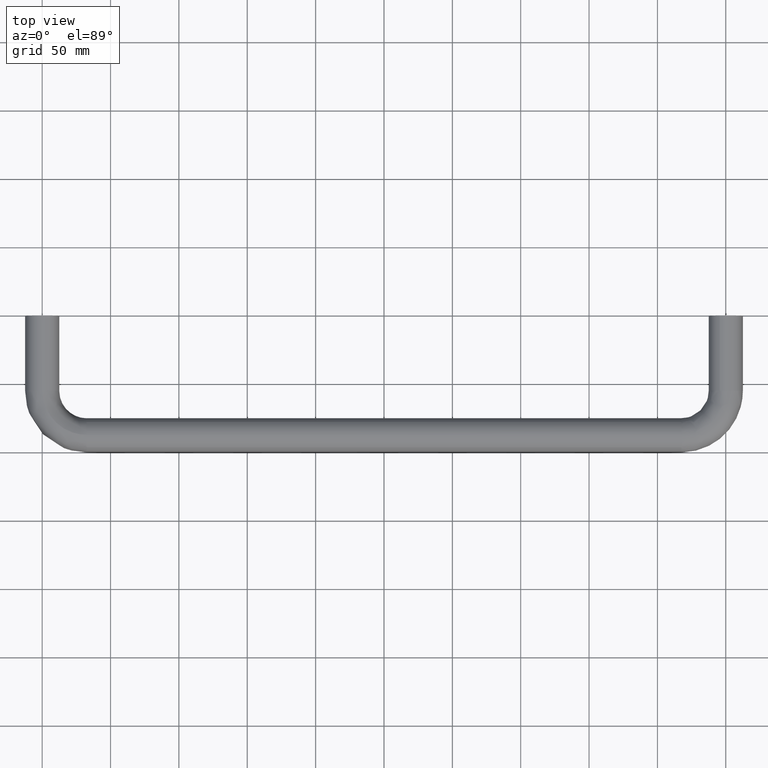
[diagram: clean part render]
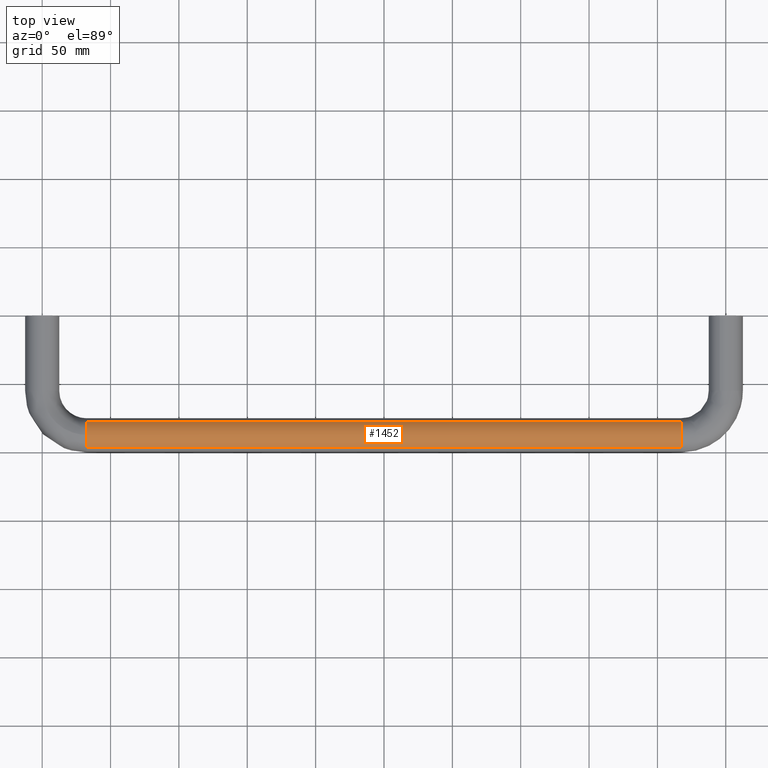
[diagram: same view with one face highlighted and labeled with its STEP entity id]
A machine part, top view. The second image highlights one B-rep face of the part: STEP entity #1452.
In plain terms, the highlighted face is a freeform B-spline surface patch.
Its self-contained STEP definition (entity closure, byte-faithful):
#1343=CARTESIAN_POINT('',(21.624998916513274,-77.767796957623645,7.844375306036842));
#1344=CARTESIAN_POINT('',(21.624998916513270,-78.222188900980754,8.408121236215372));
#1345=CARTESIAN_POINT('',(21.624998916513270,-78.738634196251866,8.915630614427272));
#1346=CARTESIAN_POINT('',(21.624998916513274,-87.654264810679138,17.676996418175403));
#1347=CARTESIAN_POINT('',(21.624998916513270,-96.415630614427272,8.761365803748129));
#1348=CARTESIAN_POINT('',(478.646919286294010,-77.767796957623645,7.844375306036842));
#1349=CARTESIAN_POINT('',(478.646919286293950,-78.222188900980754,8.408121236215372));
#1350=CARTESIAN_POINT('',(478.646919286294010,-78.738634196251866,8.915630614427272));
#1351=CARTESIAN_POINT('',(478.646919286294010,-87.654264810679138,17.676996418175403));
#1352=CARTESIAN_POINT('',(478.646919286294010,-96.415630614427272,8.761365803748129));
#1360=(BOUNDED_SURFACE()B_SPLINE_SURFACE(2,1,((#1343,#1348),(#1344,#1349),(#1345,#1350),(#1346,#1351),(#1347,#1352)),.UNSPECIFIED.,.F.,.F.,.U.)B_SPLINE_SURFACE_WITH_KNOTS((3,2,3),(2,2),(0.0,1.656854249492383,22.367532368147138),(0.0,457.021920369780670),.UNSPECIFIED.)GEOMETRIC_REPRESENTATION_ITEM()RATIONAL_B_SPLINE_SURFACE(((0.956886118190660,0.956886118190660),(0.976568542494924,0.976568542494924),(1.0,1.0),(0.707106781186548,0.707106781186548),(1.0,1.0)))REPRESENTATION_ITEM('')SURFACE());
#1361=CARTESIAN_POINT('',(32.499999999126238,-77.767795817033090,7.844373890179743));
#1362=VERTEX_POINT('',#1361);
#1363=CARTESIAN_POINT('',(32.499999996103540,-87.342924495854845,12.499013052477279));
#1364=VERTEX_POINT('',#1363);
#1365=CARTESIAN_POINT('',(32.499999999126238,-77.767795817033090,7.844373890179743));
#1366=CARTESIAN_POINT('',(32.499999997960693,-81.459948437345048,12.425081498093444));
#1367=CARTESIAN_POINT('',(32.499999996103547,-87.342924495854845,12.499013052477286));
#1375=(BOUNDED_CURVE()B_SPLINE_CURVE(2,(#1365,#1366,#1367),.UNSPECIFIED.,.F.,.U.)B_SPLINE_CURVE_WITH_KNOTS((3,3),(0.858840154701086,0.997784295764047),.UNSPECIFIED.)CURVE()GEOMETRIC_REPRESENTATION_ITEM()RATIONAL_B_SPLINE_CURVE((0.856000952542769,0.834956543609359,0.994854295281091))REPRESENTATION_ITEM(''));
#1376=EDGE_CURVE('',#1362,#1364,#1375,.T.);
#1377=ORIENTED_EDGE('',*,*,#1376,.T.);
#1378=CARTESIAN_POINT('',(32.500000000000000,-87.500000000000000,12.500000000000000));
#1379=VERTEX_POINT('',#1378);
#1380=CARTESIAN_POINT('',(32.499999996103540,-87.342924495854845,12.499013052477286));
#1381=CARTESIAN_POINT('',(32.500000000000000,-87.421459144497447,12.500000000000000));
#1382=CARTESIAN_POINT('',(32.500000000000000,-87.500000000000000,12.500000000000000));
#1390=(BOUNDED_CURVE()B_SPLINE_CURVE(2,(#1380,#1381,#1382),.UNSPECIFIED.,.F.,.U.)B_SPLINE_CURVE_WITH_KNOTS((3,3),(0.997784295764047,1.0),.UNSPECIFIED.)CURVE()GEOMETRIC_REPRESENTATION_ITEM()RATIONAL_B_SPLINE_CURVE((0.994854295281092,0.997404141017573,1.0))REPRESENTATION_ITEM(''));
#1391=EDGE_CURVE('',#1364,#1379,#1390,.T.);
#1392=ORIENTED_EDGE('',*,*,#1391,.T.);
#1393=CARTESIAN_POINT('',(32.500000000000000,-96.415632055581426,8.761364337218531));
#1394=VERTEX_POINT('',#1393);
#1395=CARTESIAN_POINT('',(32.500000000000000,-87.500000000000000,12.500000000000000));
#1396=CARTESIAN_POINT('',(32.499999999999993,-92.741686230816370,12.499999999999998));
#1397=CARTESIAN_POINT('',(32.500000000000000,-96.415632055581554,8.761364337218637));
#1405=(BOUNDED_CURVE()B_SPLINE_CURVE(2,(#1395,#1396,#1397),.UNSPECIFIED.,.F.,.U.)B_SPLINE_CURVE_WITH_KNOTS((3,3),(0.0,0.126316782411142),.UNSPECIFIED.)CURVE()GEOMETRIC_REPRESENTATION_ITEM()RATIONAL_B_SPLINE_CURVE((1.0,0.852010684037768,0.853569641864137))REPRESENTATION_ITEM(''));
#1406=EDGE_CURVE('',#1379,#1394,#1405,.T.);
#1407=ORIENTED_EDGE('',*,*,#1406,.T.);
#1408=CARTESIAN_POINT('',(467.500000000000110,-96.415632073586025,8.761364318896899));
#1409=VERTEX_POINT('',#1408);
#1410=CARTESIAN_POINT('',(32.500000000000000,-96.415632055581426,8.761364337218531));
#1411=CARTESIAN_POINT('',(467.500000000000110,-96.415632073586025,8.761364318896899));
#1412=QUASI_UNIFORM_CURVE('',1,(#1410,#1411),.UNSPECIFIED.,.F.,.U.);
#1413=EDGE_CURVE('',#1394,#1409,#1412,.T.);
#1414=ORIENTED_EDGE('',*,*,#1413,.T.);
#1415=CARTESIAN_POINT('',(467.500000000000000,-87.500000000000000,12.500000000000000));
#1416=VERTEX_POINT('',#1415);
#1417=CARTESIAN_POINT('',(467.500000000000000,-87.500000000000000,12.500000000000000));
#1418=CARTESIAN_POINT('',(467.500000000000110,-92.741686245918586,12.500000000000005));
#1419=CARTESIAN_POINT('',(467.500000000000000,-96.415632073586139,8.761364318897023));
#1427=(BOUNDED_CURVE()B_SPLINE_CURVE(2,(#1417,#1418,#1419),.UNSPECIFIED.,.F.,.U.)B_SPLINE_CURVE_WITH_KNOTS((3,3),(0.0,0.126316782721224),.UNSPECIFIED.)CURVE()GEOMETRIC_REPRESENTATION_ITEM()RATIONAL_B_SPLINE_CURVE((1.0,0.852010683674485,0.853569641871790))REPRESENTATION_ITEM(''));
#1428=EDGE_CURVE('',#1416,#1409,#1427,.T.);
#1429=ORIENTED_EDGE('',*,*,#1428,.F.);
#1430=CARTESIAN_POINT('',(467.500008146740580,-77.767796957627183,7.844375306044061));
#1431=VERTEX_POINT('',#1430);
#1432=CARTESIAN_POINT('',(467.500008146740700,-77.767796957627183,7.844375306044061));
#1433=CARTESIAN_POINT('',(467.500000064882220,-81.520335537485565,12.500000000000050));
#1434=CARTESIAN_POINT('',(467.500000000000000,-87.500000000000000,12.500000000000000));
#1442=(BOUNDED_CURVE()B_SPLINE_CURVE(2,(#1432,#1433,#1434),.UNSPECIFIED.,.F.,.U.)B_SPLINE_CURVE_WITH_KNOTS((3,3),(0.858840176720622,1.0),.UNSPECIFIED.)CURVE()GEOMETRIC_REPRESENTATION_ITEM()RATIONAL_B_SPLINE_CURVE((0.856000945872638,0.834620979970260,1.0))REPRESENTATION_ITEM(''));
#1443=EDGE_CURVE('',#1431,#1416,#1442,.T.);
#1444=ORIENTED_EDGE('',*,*,#1443,.F.);
#1445=CARTESIAN_POINT('',(32.499999999126238,-77.767795817033090,7.844373890179743));
#1446=CARTESIAN_POINT('',(467.500008146740580,-77.767796957627183,7.844375306044061));
#1447=QUASI_UNIFORM_CURVE('',1,(#1445,#1446),.UNSPECIFIED.,.F.,.U.);
#1448=EDGE_CURVE('',#1362,#1431,#1447,.T.);
#1449=ORIENTED_EDGE('',*,*,#1448,.F.);
#1450=EDGE_LOOP('',(#1377,#1392,#1407,#1414,#1429,#1444,#1449));
#1451=FACE_OUTER_BOUND('',#1450,.T.);
#1452=ADVANCED_FACE('',(#1451),#1360,.T.);